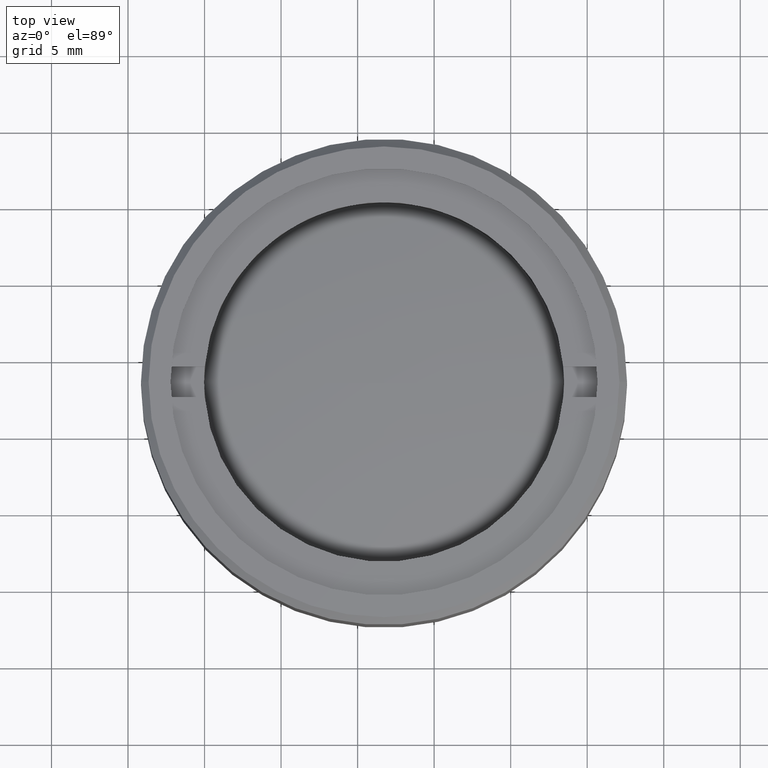
[diagram: clean part render]
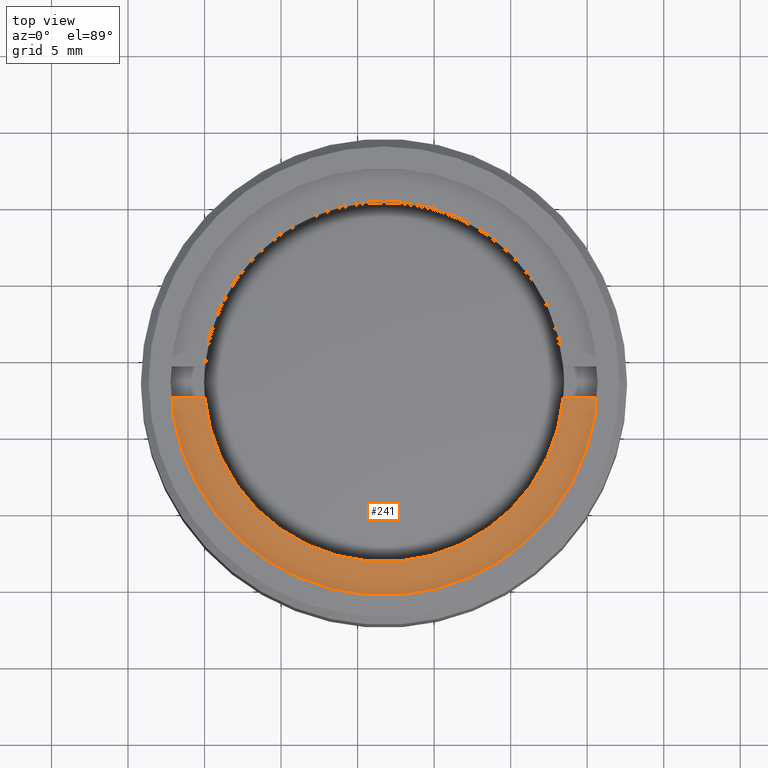
[diagram: same view with one face highlighted and labeled with its STEP entity id]
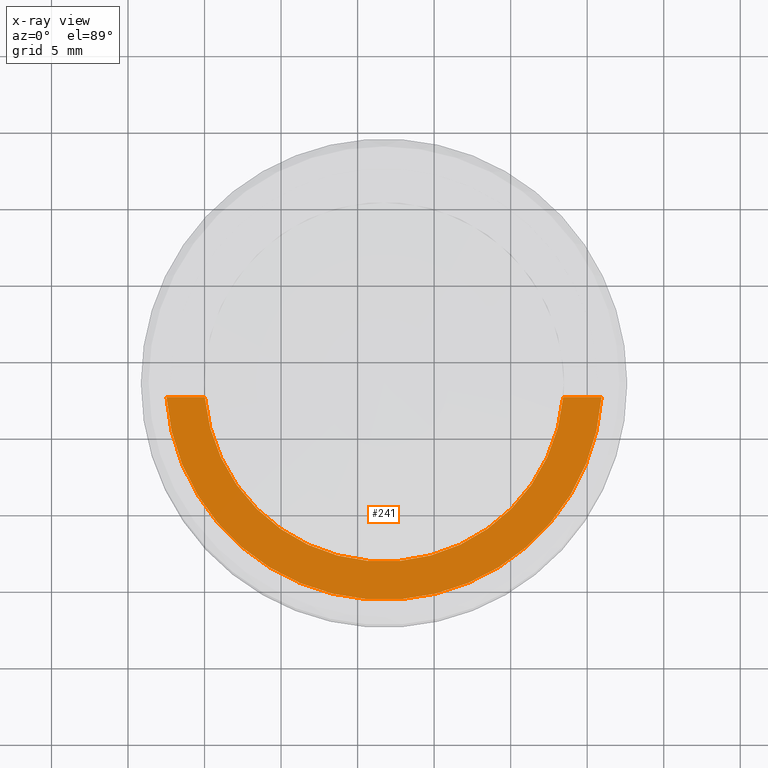
[diagram: x-ray of the same camera — body ghosted, the highlighted face saturated]
A machine part, top view. The second image highlights one B-rep face of the part: STEP entity #241.
The next image is the same camera in x-ray: the body ghosted, the highlighted face saturated — about 0% of this face is hidden behind the body in this view.
In plain terms, the highlighted planar face has unit normal (0, 0, 1).
Its self-contained STEP definition (entity closure, byte-faithful):
#42 = ORIENTED_EDGE ( 'NONE', *, *, #961, .T. ) ;
#70 = EDGE_CURVE ( 'NONE', #1635, #820, #774, .T. ) ;
#129 = DIRECTION ( 'NONE',  ( 0.000000000000000000, 0.000000000000000000, 1.000000000000000000 ) ) ;
#151 = DIRECTION ( 'NONE',  ( 1.000000000000000000, 0.000000000000000000, 0.000000000000000000 ) ) ;
#181 = CIRCLE ( 'NONE', #834, 11.75000000000000178 ) ;
#206 = DIRECTION ( 'NONE',  ( 1.000000000000000000, 0.000000000000000000, 0.000000000000000000 ) ) ;
#241 = ADVANCED_FACE ( 'NONE', ( #831 ), #1642, .T. ) ;
#285 = CARTESIAN_POINT ( 'NONE',  ( 0.000000000000000000, 0.000000000000000000, 2.500000000000000000 ) ) ;
#345 = DIRECTION ( 'NONE',  ( 0.000000000000000000, 0.000000000000000000, 1.000000000000000000 ) ) ;
#390 = CIRCLE ( 'NONE', #1363, 14.25000000000000000 ) ;
#414 = DIRECTION ( 'NONE',  ( 1.000000000000000000, 0.000000000000000000, 0.000000000000000000 ) ) ;
#432 = CARTESIAN_POINT ( 'NONE',  ( -30.62185530834360492, -1.000000000000000000, 2.500000000000000000 ) ) ;
#446 = CARTESIAN_POINT ( 'NONE',  ( -11.70736947396809668, -1.000000000000000000, 2.500000000000000000 ) ) ;
#500 = CARTESIAN_POINT ( 'NONE',  ( 0.000000000000000000, 0.000000000000000000, 2.500000000000000000 ) ) ;
#503 = CARTESIAN_POINT ( 'NONE',  ( 11.70736947396809668, -1.000000000000000000, 2.500000000000000000 ) ) ;
#508 = VERTEX_POINT ( 'NONE', #1031 ) ;
#566 = EDGE_CURVE ( 'NONE', #508, #1525, #1218, .T. ) ;
#658 = EDGE_LOOP ( 'NONE', ( #745, #42, #1479, #1132 ) ) ;
#742 = EDGE_CURVE ( 'NONE', #1525, #1635, #181, .T. ) ;
#745 = ORIENTED_EDGE ( 'NONE', *, *, #566, .F. ) ;
#747 = DIRECTION ( 'NONE',  ( 1.000000000000000000, 0.000000000000000000, 0.000000000000000000 ) ) ;
#758 = AXIS2_PLACEMENT_3D ( 'NONE', #285, #1249, #1617 ) ;
#774 = LINE ( 'NONE', #904, #1263 ) ;
#820 = VERTEX_POINT ( 'NONE', #981 ) ;
#831 = FACE_OUTER_BOUND ( 'NONE', #658, .T. ) ;
#834 = AXIS2_PLACEMENT_3D ( 'NONE', #1636, #345, #206 ) ;
#904 = CARTESIAN_POINT ( 'NONE',  ( -30.62185530834360492, -1.000000000000000000, 2.500000000000000000 ) ) ;
#961 = EDGE_CURVE ( 'NONE', #508, #820, #390, .T. ) ;
#981 = CARTESIAN_POINT ( 'NONE',  ( 14.21486897582949993, -1.000000000000000000, 2.500000000000000000 ) ) ;
#1031 = CARTESIAN_POINT ( 'NONE',  ( -14.21486897582949993, -1.000000000000000000, 2.500000000000000000 ) ) ;
#1132 = ORIENTED_EDGE ( 'NONE', *, *, #742, .F. ) ;
#1143 = VECTOR ( 'NONE', #151, 1000.000000000000000 ) ;
#1218 = LINE ( 'NONE', #432, #1143 ) ;
#1249 = DIRECTION ( 'NONE',  ( 0.000000000000000000, 0.000000000000000000, 1.000000000000000000 ) ) ;
#1263 = VECTOR ( 'NONE', #414, 1000.000000000000000 ) ;
#1363 = AXIS2_PLACEMENT_3D ( 'NONE', #500, #129, #747 ) ;
#1479 = ORIENTED_EDGE ( 'NONE', *, *, #70, .F. ) ;
#1525 = VERTEX_POINT ( 'NONE', #446 ) ;
#1617 = DIRECTION ( 'NONE',  ( 1.000000000000000000, 0.000000000000000000, -0.000000000000000000 ) ) ;
#1635 = VERTEX_POINT ( 'NONE', #503 ) ;
#1636 = CARTESIAN_POINT ( 'NONE',  ( 0.000000000000000000, 0.000000000000000000, 2.500000000000000000 ) ) ;
#1642 = PLANE ( 'NONE',  #758 ) ;